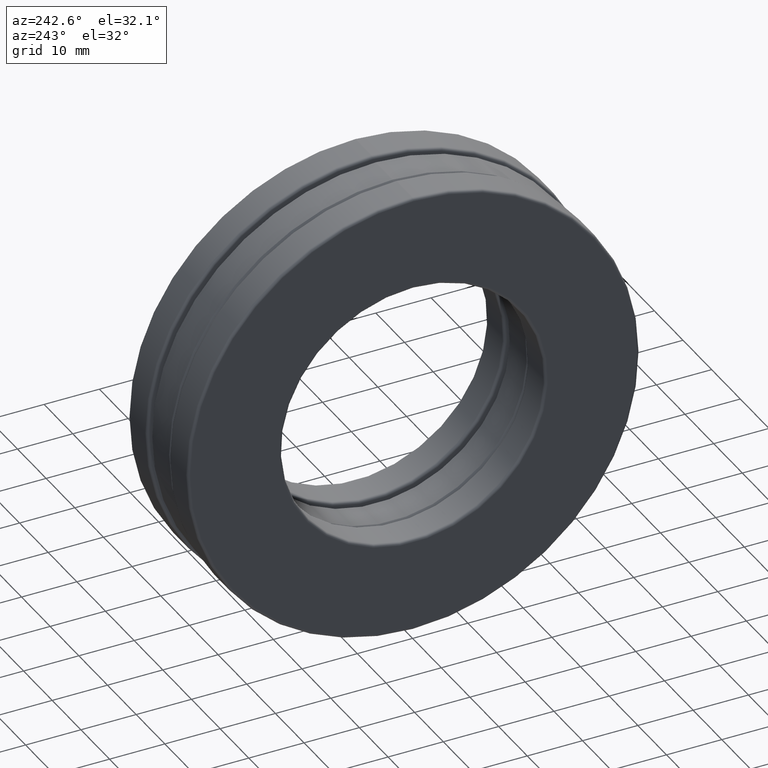
[diagram: clean part render]
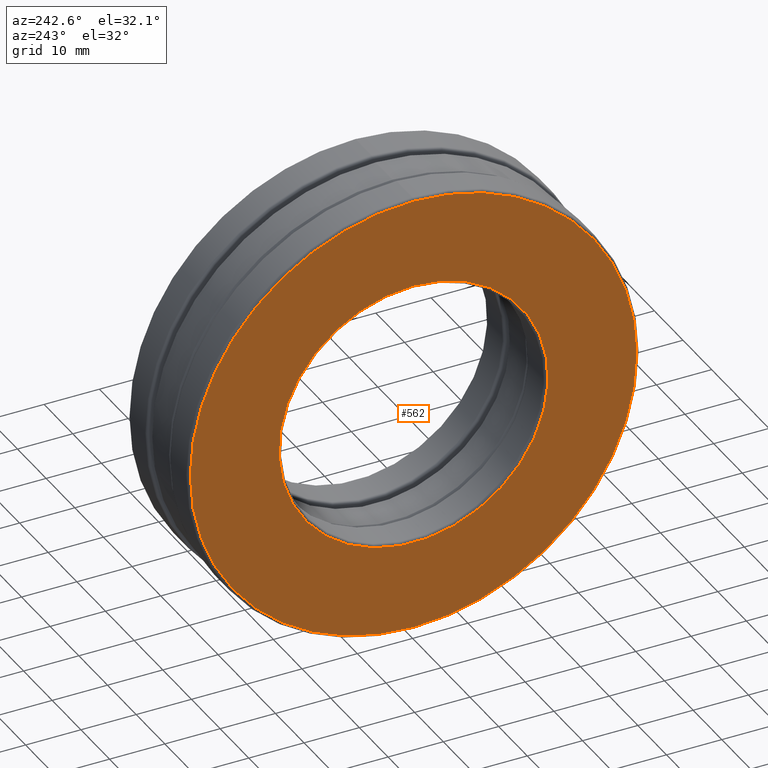
[diagram: same view with one face highlighted and labeled with its STEP entity id]
A machine part, auxiliary view. The second image highlights one B-rep face of the part: STEP entity #562.
In plain terms, the highlighted planar face has unit normal (1, 0, 0).
Its self-contained STEP definition (entity closure, byte-faithful):
#105 = DIRECTION ( 'NONE',  ( 1.000000000000000000, 0.0000000000000000000, 0.0000000000000000000 ) ) ;
#120 = EDGE_CURVE ( 'NONE', #846, #846, #256, .T. ) ;
#139 = CARTESIAN_POINT ( 'NONE',  ( -0.4059999999999998600, 0.0000000000000000000, 1.589375000000000900 ) ) ;
#175 = EDGE_CURVE ( 'NONE', #674, #674, #755, .T. ) ;
#206 = AXIS2_PLACEMENT_3D ( 'NONE', #1047, #813, #709 ) ;
#255 = EDGE_LOOP ( 'NONE', ( #1100 ) ) ;
#256 = CIRCLE ( 'NONE', #1221, 1.589375000000000900 ) ;
#303 = AXIS2_PLACEMENT_3D ( 'NONE', #1346, #105, #1125 ) ;
#490 = CARTESIAN_POINT ( 'NONE',  ( -0.4059999999999998600, 0.0000000000000000000, 0.0000000000000000000 ) ) ;
#548 = ORIENTED_EDGE ( 'NONE', *, *, #120, .T. ) ;
#562 = ADVANCED_FACE ( 'NONE', ( #1349, #1151 ), #664, .F. ) ;
#605 = EDGE_LOOP ( 'NONE', ( #548 ) ) ;
#664 = PLANE ( 'NONE',  #303 ) ;
#674 = VERTEX_POINT ( 'NONE', #1455 ) ;
#709 = DIRECTION ( 'NONE',  ( 0.0000000000000000000, 0.0000000000000000000, 1.000000000000000000 ) ) ;
#755 = CIRCLE ( 'NONE', #206, 0.9575000000000001300 ) ;
#813 = DIRECTION ( 'NONE',  ( -1.000000000000000000, -0.0000000000000000000, -0.0000000000000000000 ) ) ;
#846 = VERTEX_POINT ( 'NONE', #139 ) ;
#939 = DIRECTION ( 'NONE',  ( -1.000000000000000000, -0.0000000000000000000, -0.0000000000000000000 ) ) ;
#1047 = CARTESIAN_POINT ( 'NONE',  ( -0.4059999999999998600, 0.0000000000000000000, 0.0000000000000000000 ) ) ;
#1060 = DIRECTION ( 'NONE',  ( 0.0000000000000000000, 0.0000000000000000000, 1.000000000000000000 ) ) ;
#1100 = ORIENTED_EDGE ( 'NONE', *, *, #175, .F. ) ;
#1125 = DIRECTION ( 'NONE',  ( 0.0000000000000000000, 0.0000000000000000000, -1.000000000000000000 ) ) ;
#1151 = FACE_OUTER_BOUND ( 'NONE', #605, .T. ) ;
#1221 = AXIS2_PLACEMENT_3D ( 'NONE', #490, #939, #1060 ) ;
#1346 = CARTESIAN_POINT ( 'NONE',  ( -0.4059999999999998600, 0.0000000000000000000, 0.0000000000000000000 ) ) ;
#1349 = FACE_BOUND ( 'NONE', #255, .T. ) ;
#1455 = CARTESIAN_POINT ( 'NONE',  ( -0.4059999999999998600, 0.0000000000000000000, 0.9575000000000001300 ) ) ;